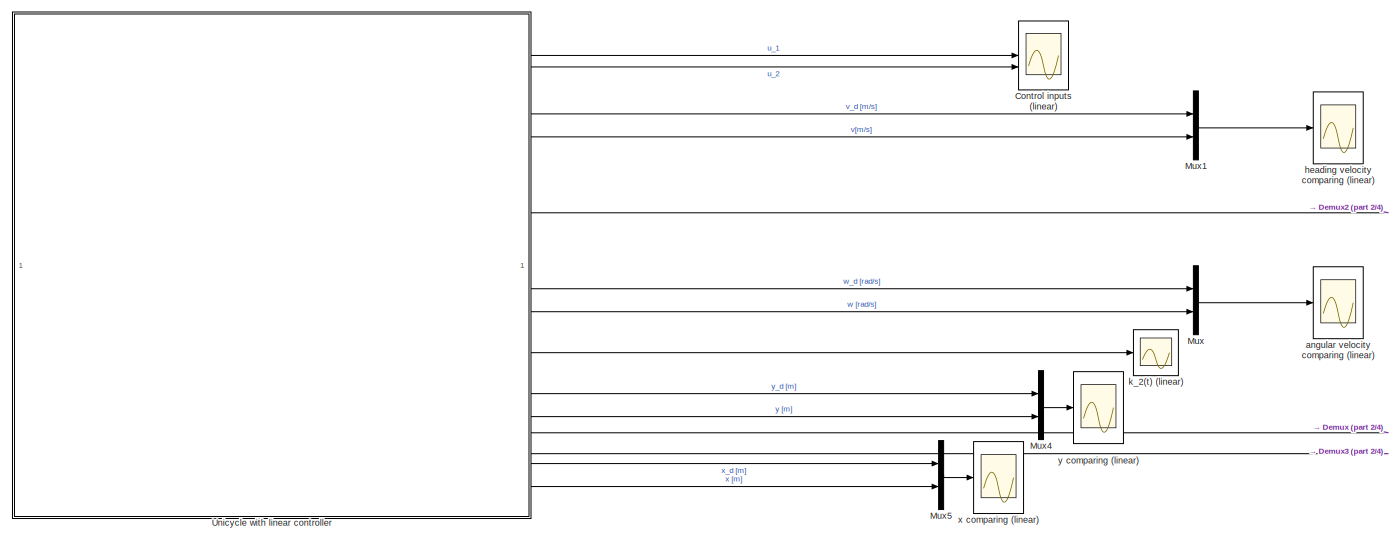
[diagram: root canvas - part 1/4, full width, top band]
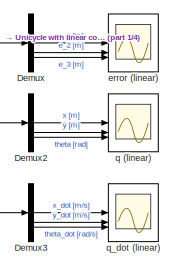
[diagram: root canvas - part 2/4, top right region]
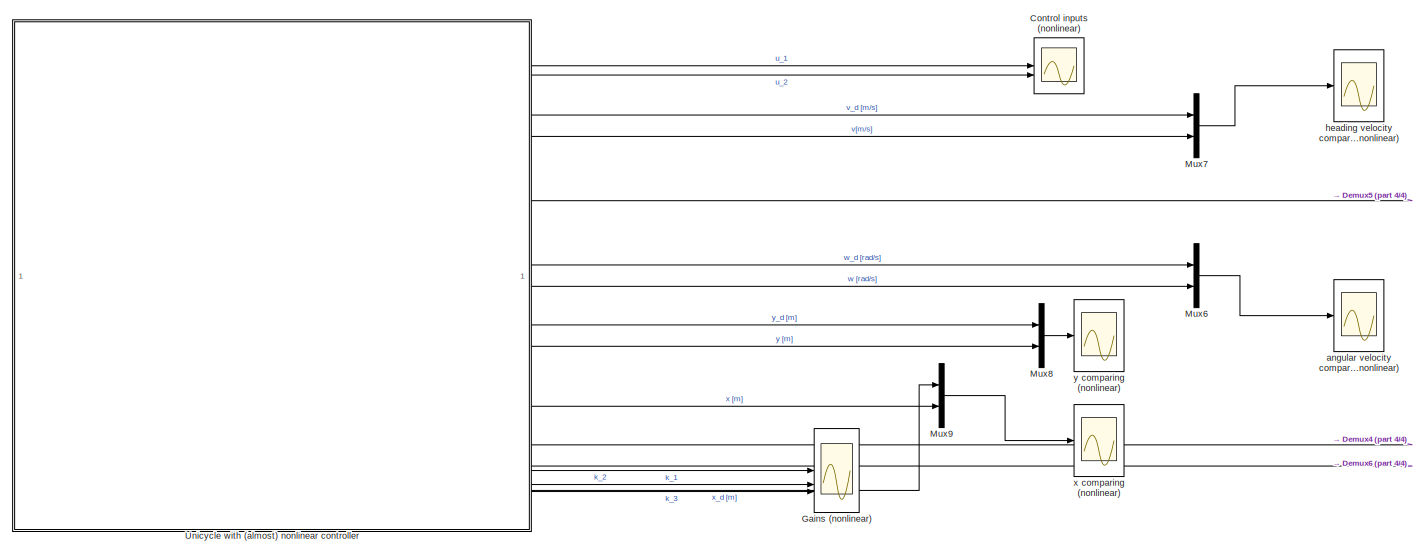
[diagram: root canvas - part 3/4, full width, bottom band]
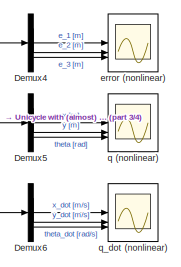
[diagram: root canvas - part 4/4, bottom right region]
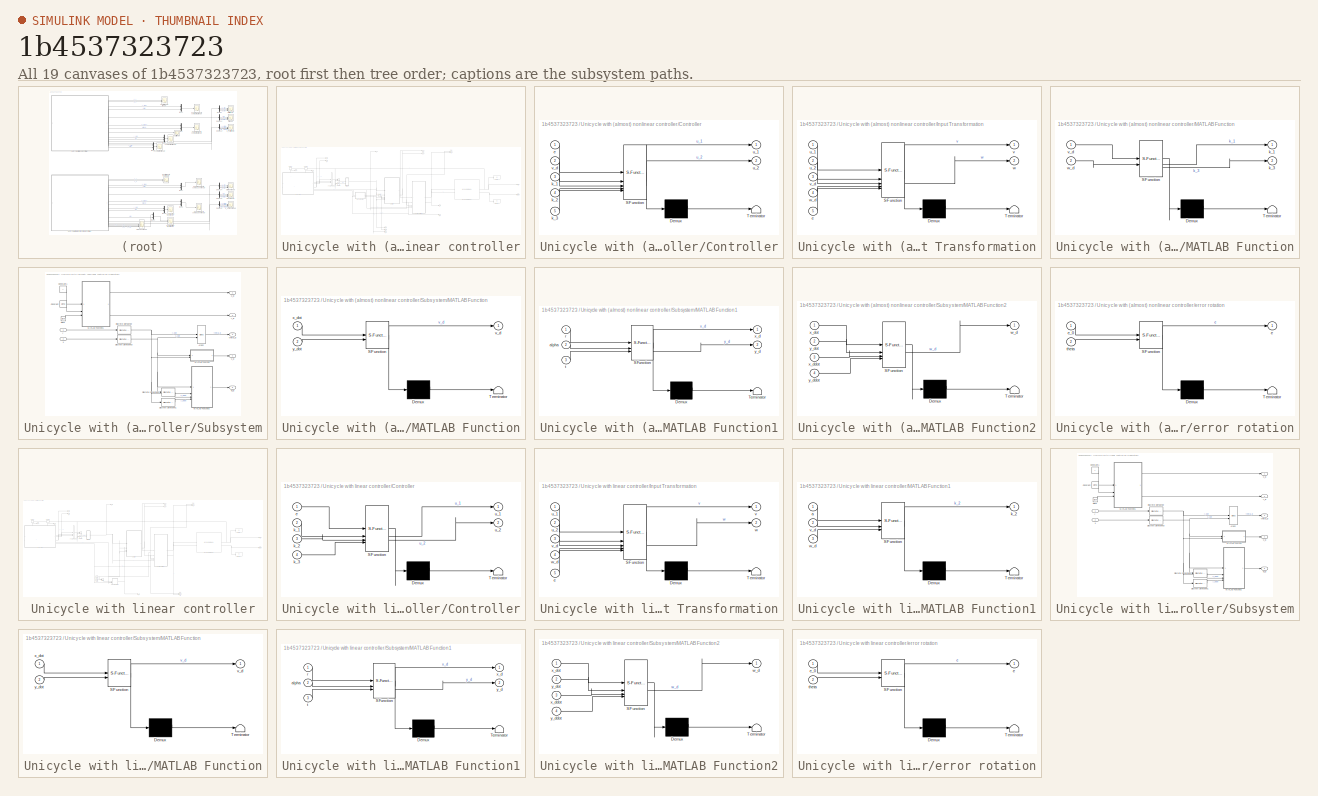
[diagram: thumbnail index - all 19 canvases of the model, root first then tree order]
MODEL slx_1b4537323723
KIND model
CONFIG AbsTol = auto
CONFIG EnableMultiTasking = off
CONFIG FixedStep = auto
CONFIG MaxStep = auto
CONFIG MinStep = auto
CONFIG RelTol = 1e-3
CONFIG SampleTimeConstraint = Unconstrained
CONFIG SolverName = VariableStepAuto
CONFIG StartTime = 0.0
CONFIG StopTime = 4*pi/(8+1)
BLOCK [Scope] Control inputs (linear)
  Floating = off
  NumInputPorts = 2
  ScopeSpecificationString = Simulink.scopes.TimeScopeBlockCfg('CurrentConfiguration', extmgr.ConfigurationSet(extmgr.Configuration('Core','General UI',true),extmgr.Configuration('Core','Source UI',true),extmgr.Configuration('Sources','WiredSimulink',true,'DataLoggingVariableName','ScopeData3'),extmgr.Configuration('Visuals','Time Domain',true,'SerializedDisplays',{struct('MinYLimReal','-5859.66855','MaxYLimReal','3794.41233'...<+1623ch>
BLOCK [Scope] Control inputs (nonlinear)
  Floating = off
  NumInputPorts = 2
  ScopeSpecificationString = Simulink.scopes.TimeScopeBlockCfg('CurrentConfiguration', extmgr.ConfigurationSet(extmgr.Configuration('Core','General UI',true),extmgr.Configuration('Core','Source UI',true),extmgr.Configuration('Sources','WiredSimulink',true,'DataLoggingVariableName','ScopeData3'),extmgr.Configuration('Visuals','Time Domain',true,'SerializedDisplays',{struct('MinYLimReal','-53585.46501','MaxYLimReal','171655.500...<+1635ch>
BLOCK [Demux] Demux
  Outputs = 3
BLOCK [Demux] Demux2
  Outputs = 3
BLOCK [Demux] Demux3
  Outputs = 3
BLOCK [Demux] Demux4
  Outputs = 3
BLOCK [Demux] Demux5
  Outputs = 3
BLOCK [Demux] Demux6
  Outputs = 3
BLOCK [Scope] Gains (nonlinear)
  Floating = off
  NumInputPorts = 3
  ScopeSpecificationString = Simulink.scopes.TimeScopeBlockCfg('CurrentConfiguration', extmgr.ConfigurationSet(extmgr.Configuration('Core','General UI',true),extmgr.Configuration('Core','Source UI',true),extmgr.Configuration('Sources','WiredSimulink',true,'DataLoggingVariableName','ScopeData1'),extmgr.Configuration('Visuals','Time Domain',true,'SerializedDisplays',{struct('MinYLimReal','-292.4499','MaxYLimReal','2642.18047','...<+2966ch>
BLOCK [Mux] Mux
  DisplayOption = bar
  Inputs = 2
BLOCK [Mux] Mux1
  DisplayOption = bar
  Inputs = 2
BLOCK [Mux] Mux4
  DisplayOption = bar
  Inputs = 2
BLOCK [Mux] Mux5
  DisplayOption = bar
  Inputs = 2
BLOCK [Mux] Mux6
  DisplayOption = bar
  Inputs = 2
BLOCK [Mux] Mux7
  DisplayOption = bar
  Inputs = 2
BLOCK [Mux] Mux8
  DisplayOption = bar
  Inputs = 2
BLOCK [Mux] Mux9
  DisplayOption = bar
  Inputs = 2
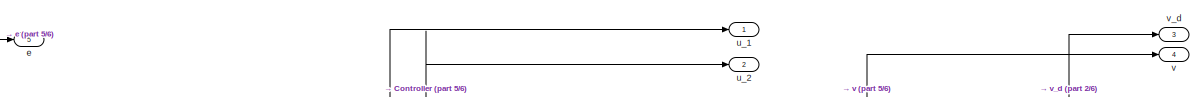
[diagram: Unicycle with (almost) nonlinear controller - part 1/6, top center region]
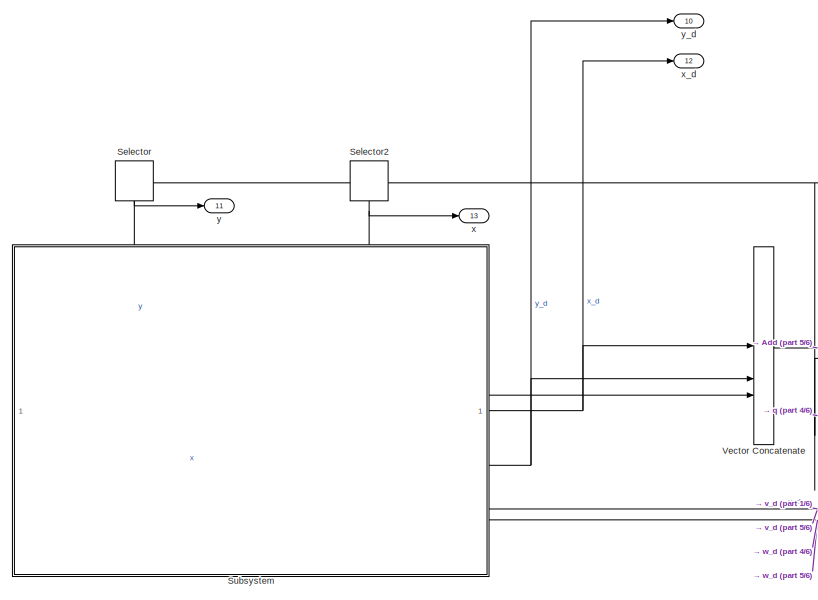
[diagram: Unicycle with (almost) nonlinear controller - part 2/6, top left region]
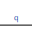
[diagram: Unicycle with (almost) nonlinear controller - part 3/6, top center region]
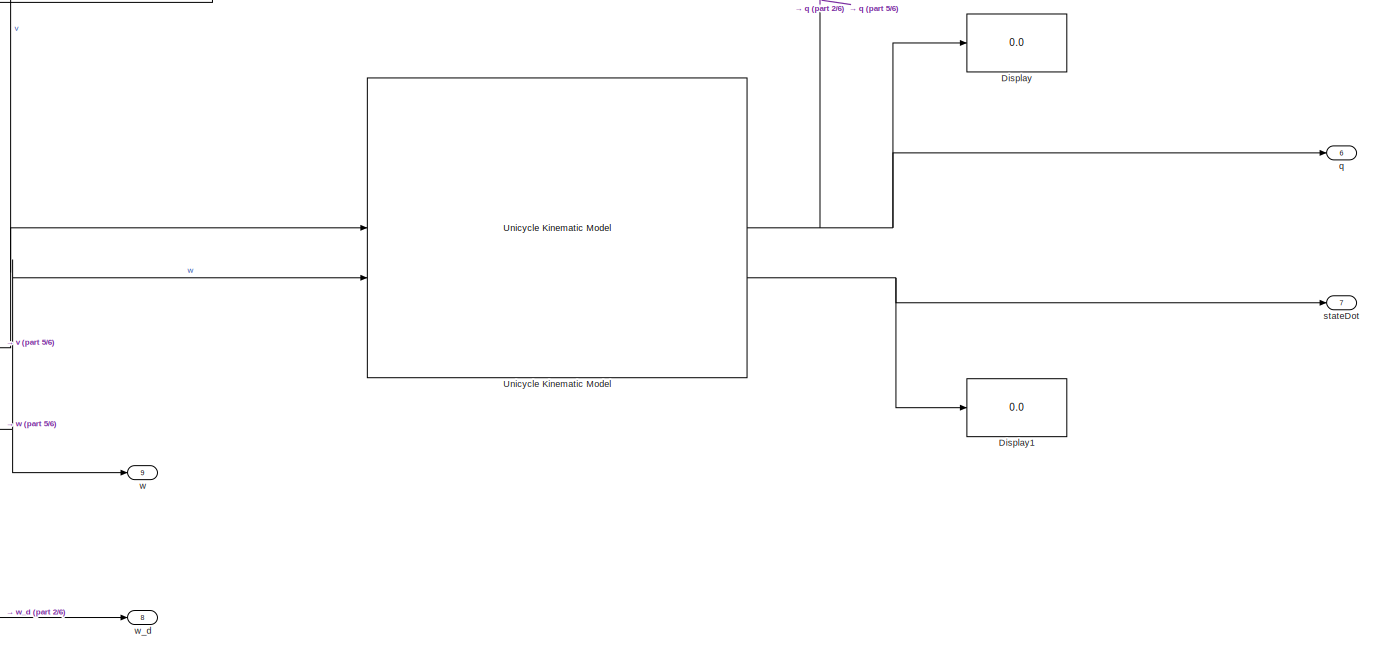
[diagram: Unicycle with (almost) nonlinear controller - part 4/6, middle right region]
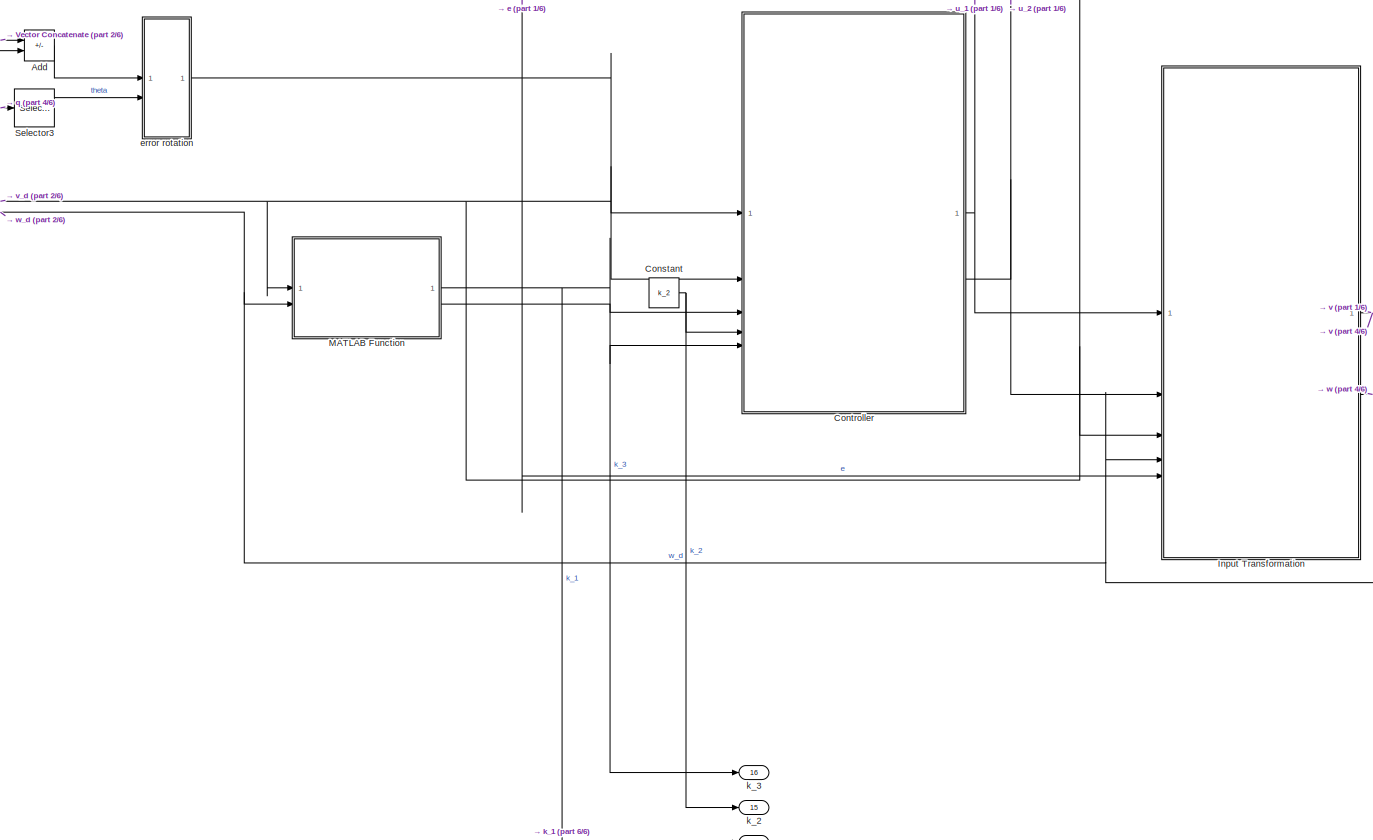
[diagram: Unicycle with (almost) nonlinear controller - part 5/6, central region]
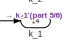
[diagram: Unicycle with (almost) nonlinear controller - part 6/6, bottom center region]
BLOCK [SubSystem] Unicycle with (almost) nonlinear controller
BLOCK [Sum] Unicycle with (almost) nonlinear controller/Add
  IconShape = rectangular
  Inputs = +-
BLOCK [Constant] Unicycle with (almost) nonlinear controller/Constant
  Value = k_2
BLOCK [SubSystem] Unicycle with (almost) nonlinear controller/Controller
  ErrorFcn = Stateflow.Translate.translate
  PermitHierarchicalResolution = ExplicitOnly
  SFBlockType = MATLAB Function
  TreatAsAtomicUnit = on
BLOCK [Demux] Unicycle with (almost) nonlinear controller/Controller/ Demux 
  Outputs = 1
BLOCK [S-Function] Unicycle with (almost) nonlinear controller/Controller/ SFunction 
  EnableBusSupport = on
  FunctionName = sf_sfun
  PortCounts = [5 3]
  SFcnIsStateOwnerBlock = off
  SFunctionDeploymentMode = off
  Tag = Stateflow S-Function 8
BLOCK [Terminator] Unicycle with (almost) nonlinear controller/Controller/ Terminator 
BLOCK [Inport] Unicycle with (almost) nonlinear controller/Controller/e
BLOCK [Inport] Unicycle with (almost) nonlinear controller/Controller/k_1
  Port = 3
BLOCK [Inport] Unicycle with (almost) nonlinear controller/Controller/k_2
  Port = 4
BLOCK [Inport] Unicycle with (almost) nonlinear controller/Controller/k_3
  Port = 5
BLOCK [Outport] Unicycle with (almost) nonlinear controller/Controller/u_1
BLOCK [Outport] Unicycle with (almost) nonlinear controller/Controller/u_2
  Port = 2
BLOCK [Inport] Unicycle with (almost) nonlinear controller/Controller/v_d
  Port = 2
BLOCK [Display] Unicycle with (almost) nonlinear controller/Display
  Decimation = 1
BLOCK [Display] Unicycle with (almost) nonlinear controller/Display1
  Decimation = 1
BLOCK [SubSystem] Unicycle with (almost) nonlinear controller/Input Transformation
  ErrorFcn = Stateflow.Translate.translate
  PermitHierarchicalResolution = ExplicitOnly
  SFBlockType = MATLAB Function
  TreatAsAtomicUnit = on
BLOCK [Demux] Unicycle with (almost) nonlinear controller/Input Transformation/ Demux 
  Outputs = 1
BLOCK [S-Function] Unicycle with (almost) nonlinear controller/Input Transformation/ SFunction 
  EnableBusSupport = on
  FunctionName = sf_sfun
  PortCounts = [5 3]
  SFcnIsStateOwnerBlock = off
  SFunctionDeploymentMode = off
  Tag = Stateflow S-Function 9
BLOCK [Terminator] Unicycle with (almost) nonlinear controller/Input Transformation/ Terminator 
BLOCK [Inport] Unicycle with (almost) nonlinear controller/Input Transformation/e
  Port = 5
BLOCK [Inport] Unicycle with (almost) nonlinear controller/Input Transformation/u_1
BLOCK [Inport] Unicycle with (almost) nonlinear controller/Input Transformation/u_2
  Port = 2
BLOCK [Outport] Unicycle with (almost) nonlinear controller/Input Transformation/v
BLOCK [Inport] Unicycle with (almost) nonlinear controller/Input Transformation/v_d
  Port = 3
BLOCK [Outport] Unicycle with (almost) nonlinear controller/Input Transformation/w
  Port = 2
BLOCK [Inport] Unicycle with (almost) nonlinear controller/Input Transformation/w_d
  Port = 4
BLOCK [SubSystem] Unicycle with (almost) nonlinear controller/MATLAB Function
  ErrorFcn = Stateflow.Translate.translate
  PermitHierarchicalResolution = ExplicitOnly
  SFBlockType = MATLAB Function
  TreatAsAtomicUnit = on
BLOCK [Demux] Unicycle with (almost) nonlinear controller/MATLAB Function/ Demux 
  Outputs = 1
BLOCK [S-Function] Unicycle with (almost) nonlinear controller/MATLAB Function/ SFunction 
  EnableBusSupport = on
  FunctionName = sf_sfun
  PortCounts = [2 3]
  SFcnIsStateOwnerBlock = off
  SFunctionDeploymentMode = off
  Tag = Stateflow S-Function 10
BLOCK [Terminator] Unicycle with (almost) nonlinear controller/MATLAB Function/ Terminator 
BLOCK [Outport] Unicycle with (almost) nonlinear controller/MATLAB Function/k_1
BLOCK [Outport] Unicycle with (almost) nonlinear controller/MATLAB Function/k_3
  Port = 2
BLOCK [Inport] Unicycle with (almost) nonlinear controller/MATLAB Function/v_d
BLOCK [Inport] Unicycle with (almost) nonlinear controller/MATLAB Function/w_d
  Port = 2
BLOCK [Selector] Unicycle with (almost) nonlinear controller/Selector
  IndexOptions = Index vector (dialog)
  Indices = 2
  InputPortWidth = 3
  NameLocation = left
  OutputSizes = 1
  RuntimeRangeChecks = on
BLOCK [Selector] Unicycle with (almost) nonlinear controller/Selector2
  IndexOptions = Index vector (dialog)
  Indices = [1]
  InputPortWidth = 3
  NameLocation = left
  OutputSizes = 1
  RuntimeRangeChecks = on
BLOCK [Selector] Unicycle with (almost) nonlinear controller/Selector3
  IndexOptions = Index vector (dialog)
  Indices = 3
  InputPortWidth = 3
  OutputSizes = 1
BLOCK [SubSystem] Unicycle with (almost) nonlinear controller/Subsystem
  PortSchema = {"entries":[{"content":{"sides":[{"content":{},"type":"ConnectorPlacement.EquallySpacedRectSide","uuid":"5e1ef72e-e14b-4fc5-86a2-e7b300b76291"},{"content":{"connectorIds":["Out1","Out2","Out3","Out4","Out5"],"side":"RIGHT"},"type":"ConnectorPlacement.EquallySpacedRectSide","uuid":"f3f998ca-b69f-453a-813f-7c460b5f2423"},{"content":{"connectorIds":["In1","In2"],"side":"TOP"},"type":"ConnectorPlaceme...<+257ch>
BLOCK [Trigonometry] Unicycle with (almost) nonlinear controller/Subsystem/Atan2
  Operator = atan2
BLOCK [Clock] Unicycle with (almost) nonlinear controller/Subsystem/Clock
BLOCK [Constant] Unicycle with (almost) nonlinear controller/Subsystem/Constant
  Value = alpha
BLOCK [Constant] Unicycle with (almost) nonlinear controller/Subsystem/Constant1
  Value = r
BLOCK [Reference] Unicycle with (almost) nonlinear controller/Subsystem/Discrete Derivative  REF=simulink/Quick Insert/Discrete/Discrete Derivative
  SourceBlock = simulink/Quick Insert/Discrete/Discrete Derivative
  SourceType = Discrete Derivative
BLOCK [Reference] Unicycle with (almost) nonlinear controller/Subsystem/Discrete Derivative1  REF=simulink/Quick Insert/Discrete/Discrete Derivative
  SourceBlock = simulink/Quick Insert/Discrete/Discrete Derivative
  SourceType = Discrete Derivative
BLOCK [Reference] Unicycle with (almost) nonlinear controller/Subsystem/Discrete Derivative2  REF=simulink/Quick Insert/Discrete/Discrete Derivative
  SourceBlock = simulink/Quick Insert/Discrete/Discrete Derivative
  SourceType = Discrete Derivative
BLOCK [Reference] Unicycle with (almost) nonlinear controller/Subsystem/Discrete Derivative3  REF=simulink/Quick Insert/Discrete/Discrete Derivative
  SourceBlock = simulink/Quick Insert/Discrete/Discrete Derivative
  SourceType = Discrete Derivative
BLOCK [SubSystem] Unicycle with (almost) nonlinear controller/Subsystem/MATLAB Function
  ErrorFcn = Stateflow.Translate.translate
  PermitHierarchicalResolution = ExplicitOnly
  SFBlockType = MATLAB Function
  TreatAsAtomicUnit = on
BLOCK [Demux] Unicycle with (almost) nonlinear controller/Subsystem/MATLAB Function/ Demux 
  Outputs = 1
BLOCK [S-Function] Unicycle with (almost) nonlinear controller/Subsystem/MATLAB Function/ SFunction 
  EnableBusSupport = on
  FunctionName = sf_sfun
  PortCounts = [2 2]
  SFcnIsStateOwnerBlock = off
  SFunctionDeploymentMode = off
  Tag = Stateflow S-Function 11
BLOCK [Terminator] Unicycle with (almost) nonlinear controller/Subsystem/MATLAB Function/ Terminator 
BLOCK [Outport] Unicycle with (almost) nonlinear controller/Subsystem/MATLAB Function/v_d
BLOCK [Inport] Unicycle with (almost) nonlinear controller/Subsystem/MATLAB Function/x_dot
BLOCK [Inport] Unicycle with (almost) nonlinear controller/Subsystem/MATLAB Function/y_dot
  Port = 2
BLOCK [SubSystem] Unicycle with (almost) nonlinear controller/Subsystem/MATLAB Function1
  ErrorFcn = Stateflow.Translate.translate
  PermitHierarchicalResolution = ExplicitOnly
  SFBlockType = MATLAB Function
  TreatAsAtomicUnit = on
BLOCK [Demux] Unicycle with (almost) nonlinear controller/Subsystem/MATLAB Function1/ Demux 
  Outputs = 1
BLOCK [S-Function] Unicycle with (almost) nonlinear controller/Subsystem/MATLAB Function1/ SFunction 
  EnableBusSupport = on
  FunctionName = sf_sfun
  PortCounts = [3 3]
  SFcnIsStateOwnerBlock = off
  SFunctionDeploymentMode = off
  Tag = Stateflow S-Function 12
BLOCK [Terminator] Unicycle with (almost) nonlinear controller/Subsystem/MATLAB Function1/ Terminator 
BLOCK [Inport] Unicycle with (almost) nonlinear controller/Subsystem/MATLAB Function1/alpha
  Port = 2
BLOCK [Inport] Unicycle with (almost) nonlinear controller/Subsystem/MATLAB Function1/r
BLOCK [Inport] Unicycle with (almost) nonlinear controller/Subsystem/MATLAB Function1/t
  Port = 3
BLOCK [Outport] Unicycle with (almost) nonlinear controller/Subsystem/MATLAB Function1/x_d
BLOCK [Outport] Unicycle with (almost) nonlinear controller/Subsystem/MATLAB Function1/y_d
  Port = 2
BLOCK [SubSystem] Unicycle with (almost) nonlinear controller/Subsystem/MATLAB Function2
  ErrorFcn = Stateflow.Translate.translate
  PermitHierarchicalResolution = ExplicitOnly
  SFBlockType = MATLAB Function
  TreatAsAtomicUnit = on
BLOCK [Demux] Unicycle with (almost) nonlinear controller/Subsystem/MATLAB Function2/ Demux 
  Outputs = 1
BLOCK [S-Function] Unicycle with (almost) nonlinear controller/Subsystem/MATLAB Function2/ SFunction 
  EnableBusSupport = on
  FunctionName = sf_sfun
  PortCounts = [4 2]
  SFcnIsStateOwnerBlock = off
  SFunctionDeploymentMode = off
  Tag = Stateflow S-Function 13
BLOCK [Terminator] Unicycle with (almost) nonlinear controller/Subsystem/MATLAB Function2/ Terminator 
BLOCK [Outport] Unicycle with (almost) nonlinear controller/Subsystem/MATLAB Function2/w_d
BLOCK [Inport] Unicycle with (almost) nonlinear controller/Subsystem/MATLAB Function2/x_ddot
  Port = 3
BLOCK [Inport] Unicycle with (almost) nonlinear controller/Subsystem/MATLAB Function2/x_dot
BLOCK [Inport] Unicycle with (almost) nonlinear controller/Subsystem/MATLAB Function2/y_ddot
  Port = 4
BLOCK [Inport] Unicycle with (almost) nonlinear controller/Subsystem/MATLAB Function2/y_dot
  Port = 2
BLOCK [Outport] Unicycle with (almost) nonlinear controller/Subsystem/theta_d
  Port = 3
BLOCK [Outport] Unicycle with (almost) nonlinear controller/Subsystem/v_d
  Port = 4
BLOCK [Outport] Unicycle with (almost) nonlinear controller/Subsystem/w_d
  Port = 5
BLOCK [Inport] Unicycle with (almost) nonlinear controller/Subsystem/x
  Port = 2
BLOCK [Outport] Unicycle with (almost) nonlinear controller/Subsystem/x_d
BLOCK [Inport] Unicycle with (almost) nonlinear controller/Subsystem/y
BLOCK [Outport] Unicycle with (almost) nonlinear controller/Subsystem/y_d
  Port = 2
BLOCK [Reference] Unicycle with (almost) nonlinear controller/Unicycle Kinematic Model  REF=robotmobilelib/Unicycle Kinematic Model
  SourceBlock = robotmobilelib/Unicycle Kinematic Model
  SourceType = Unicycle Kinematic Model
BLOCK [Concatenate] Unicycle with (almost) nonlinear controller/Vector Concatenate
  NumInputs = 3
BLOCK [Outport] Unicycle with (almost) nonlinear controller/e
  Port = 5
BLOCK [SubSystem] Unicycle with (almost) nonlinear controller/error rotation
  ErrorFcn = Stateflow.Translate.translate
  PermitHierarchicalResolution = ExplicitOnly
  SFBlockType = MATLAB Function
  TreatAsAtomicUnit = on
BLOCK [Demux] Unicycle with (almost) nonlinear controller/error rotation/ Demux 
  Outputs = 1
BLOCK [S-Function] Unicycle with (almost) nonlinear controller/error rotation/ SFunction 
  EnableBusSupport = on
  FunctionName = sf_sfun
  PortCounts = [2 2]
  SFcnIsStateOwnerBlock = off
  SFunctionDeploymentMode = off
  Tag = Stateflow S-Function 14
BLOCK [Terminator] Unicycle with (almost) nonlinear controller/error rotation/ Terminator 
BLOCK [Outport] Unicycle with (almost) nonlinear controller/error rotation/e
BLOCK [Inport] Unicycle with (almost) nonlinear controller/error rotation/e_0
BLOCK [Inport] Unicycle with (almost) nonlinear controller/error rotation/theta
  Port = 2
BLOCK [Outport] Unicycle with (almost) nonlinear controller/k_1
  Port = 14
BLOCK [Outport] Unicycle with (almost) nonlinear controller/k_2
  Port = 15
BLOCK [Outport] Unicycle with (almost) nonlinear controller/k_3
  Port = 16
BLOCK [Outport] Unicycle with (almost) nonlinear controller/q
  Port = 6
BLOCK [Outport] Unicycle with (almost) nonlinear controller/stateDot
  Port = 7
BLOCK [Outport] Unicycle with (almost) nonlinear controller/u_1
BLOCK [Outport] Unicycle with (almost) nonlinear controller/u_2
  Port = 2
BLOCK [Outport] Unicycle with (almost) nonlinear controller/v
  Port = 4
BLOCK [Outport] Unicycle with (almost) nonlinear controller/v_d
  Port = 3
BLOCK [Outport] Unicycle with (almost) nonlinear controller/w
  Port = 9
BLOCK [Outport] Unicycle with (almost) nonlinear controller/w_d
  Port = 8
BLOCK [Outport] Unicycle with (almost) nonlinear controller/x
  Port = 13
BLOCK [Outport] Unicycle with (almost) nonlinear controller/x_d
  Port = 12
BLOCK [Outport] Unicycle with (almost) nonlinear controller/y
  Port = 11
BLOCK [Outport] Unicycle with (almost) nonlinear controller/y_d
  Port = 10
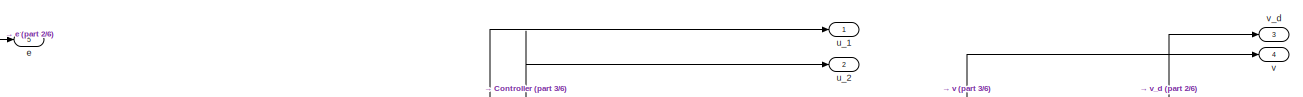
[diagram: Unicycle with linear controller - part 1/6, top center region]
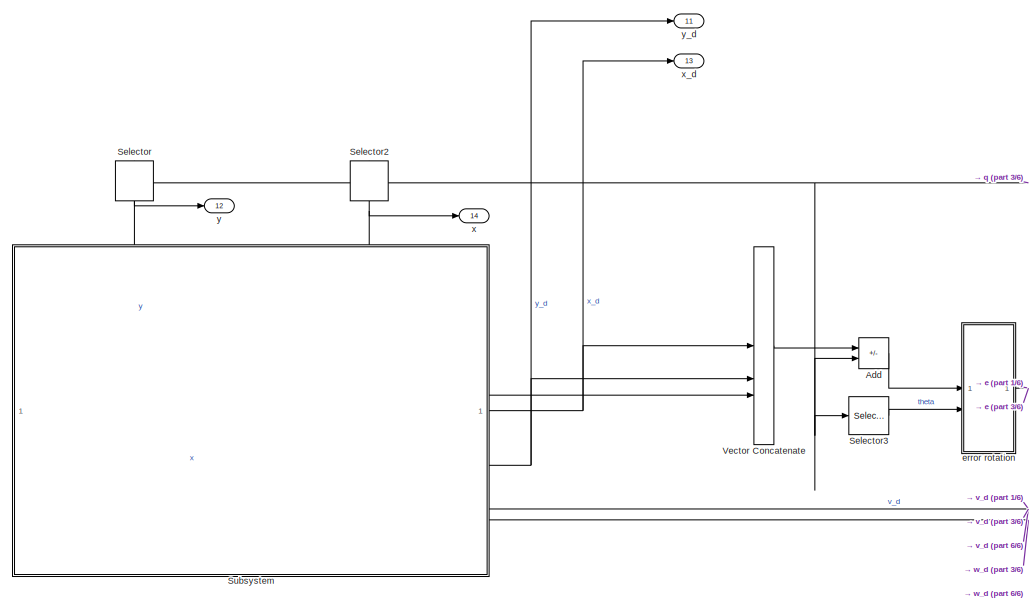
[diagram: Unicycle with linear controller - part 2/6, top left region]
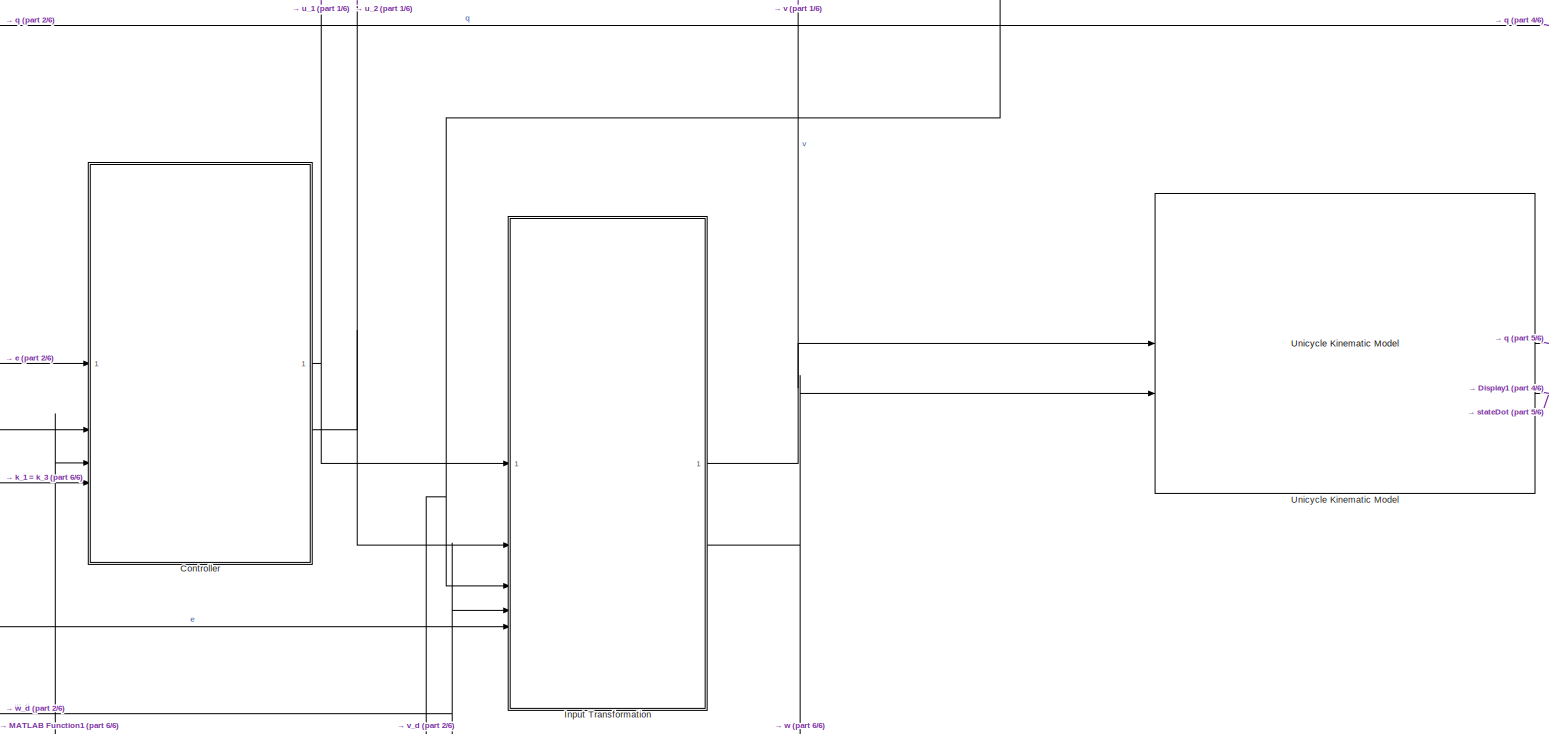
[diagram: Unicycle with linear controller - part 3/6, central region]
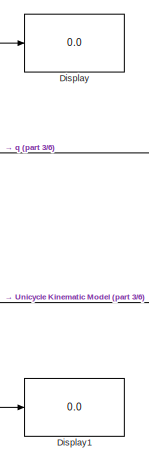
[diagram: Unicycle with linear controller - part 4/6, middle right region]
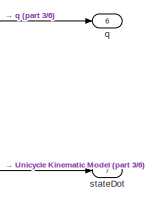
[diagram: Unicycle with linear controller - part 5/6, middle right region]
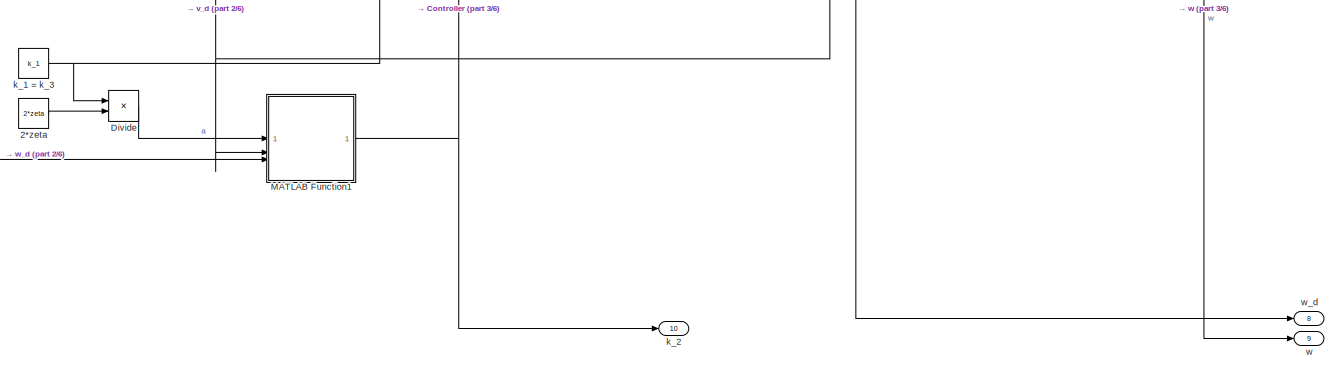
[diagram: Unicycle with linear controller - part 6/6, bottom center region]
BLOCK [SubSystem] Unicycle with linear controller
BLOCK [Constant] Unicycle with linear controller/2*zeta
  Value = 2*zeta
BLOCK [Sum] Unicycle with linear controller/Add
  IconShape = rectangular
  Inputs = +-
BLOCK [SubSystem] Unicycle with linear controller/Controller
  ErrorFcn = Stateflow.Translate.translate
  PermitHierarchicalResolution = ExplicitOnly
  SFBlockType = MATLAB Function
  TreatAsAtomicUnit = on
BLOCK [Demux] Unicycle with linear controller/Controller/ Demux 
  Outputs = 1
BLOCK [S-Function] Unicycle with linear controller/Controller/ SFunction 
  EnableBusSupport = on
  FunctionName = sf_sfun
  PortCounts = [4 3]
  SFcnIsStateOwnerBlock = off
  SFunctionDeploymentMode = off
  Tag = Stateflow S-Function 2
BLOCK [Terminator] Unicycle with linear controller/Controller/ Terminator 
BLOCK [Inport] Unicycle with linear controller/Controller/e
BLOCK [Inport] Unicycle with linear controller/Controller/k_1
  Port = 2
BLOCK [Inport] Unicycle with linear controller/Controller/k_2
  Port = 3
BLOCK [Inport] Unicycle with linear controller/Controller/k_3
  Port = 4
BLOCK [Outport] Unicycle with linear controller/Controller/u_1
BLOCK [Outport] Unicycle with linear controller/Controller/u_2
  Port = 2
BLOCK [Display] Unicycle with linear controller/Display
  Decimation = 1
BLOCK [Display] Unicycle with linear controller/Display1
  Decimation = 1
BLOCK [Product] Unicycle with linear controller/Divide
  Inputs = */
BLOCK [SubSystem] Unicycle with linear controller/Input Transformation
  ErrorFcn = Stateflow.Translate.translate
  PermitHierarchicalResolution = ExplicitOnly
  SFBlockType = MATLAB Function
  TreatAsAtomicUnit = on
BLOCK [Demux] Unicycle with linear controller/Input Transformation/ Demux 
  Outputs = 1
BLOCK [S-Function] Unicycle with linear controller/Input Transformation/ SFunction 
  EnableBusSupport = on
  FunctionName = sf_sfun
  PortCounts = [5 3]
  SFcnIsStateOwnerBlock = off
  SFunctionDeploymentMode = off
  Tag = Stateflow S-Function 6
BLOCK [Terminator] Unicycle with linear controller/Input Transformation/ Terminator 
BLOCK [Inport] Unicycle with linear controller/Input Transformation/e
  Port = 5
BLOCK [Inport] Unicycle with linear controller/Input Transformation/u_1
BLOCK [Inport] Unicycle with linear controller/Input Transformation/u_2
  Port = 2
BLOCK [Outport] Unicycle with linear controller/Input Transformation/v
BLOCK [Inport] Unicycle with linear controller/Input Transformation/v_d
  Port = 3
BLOCK [Outport] Unicycle with linear controller/Input Transformation/w
  Port = 2
BLOCK [Inport] Unicycle with linear controller/Input Transformation/w_d
  Port = 4
BLOCK [SubSystem] Unicycle with linear controller/MATLAB Function1
  ErrorFcn = Stateflow.Translate.translate
  PermitHierarchicalResolution = ExplicitOnly
  SFBlockType = MATLAB Function
  TreatAsAtomicUnit = on
BLOCK [Demux] Unicycle with linear controller/MATLAB Function1/ Demux 
  Outputs = 1
BLOCK [S-Function] Unicycle with linear controller/MATLAB Function1/ SFunction 
  EnableBusSupport = on
  FunctionName = sf_sfun
  PortCounts = [3 2]
  SFcnIsStateOwnerBlock = off
  SFunctionDeploymentMode = off
  Tag = Stateflow S-Function 5
BLOCK [Terminator] Unicycle with linear controller/MATLAB Function1/ Terminator 
BLOCK [Inport] Unicycle with linear controller/MATLAB Function1/a
BLOCK [Outport] Unicycle with linear controller/MATLAB Function1/k_2
BLOCK [Inport] Unicycle with linear controller/MATLAB Function1/v_d
  Port = 2
BLOCK [Inport] Unicycle with linear controller/MATLAB Function1/w_d
  Port = 3
BLOCK [Selector] Unicycle with linear controller/Selector
  IndexOptions = Index vector (dialog)
  Indices = 2
  InputPortWidth = 3
  NameLocation = left
  OutputSizes = 1
  RuntimeRangeChecks = on
BLOCK [Selector] Unicycle with linear controller/Selector2
  IndexOptions = Index vector (dialog)
  Indices = [1]
  InputPortWidth = 3
  NameLocation = left
  OutputSizes = 1
  RuntimeRangeChecks = on
BLOCK [Selector] Unicycle with linear controller/Selector3
  IndexOptions = Index vector (dialog)
  Indices = 3
  InputPortWidth = 3
  OutputSizes = 1
BLOCK [SubSystem] Unicycle with linear controller/Subsystem
  PortSchema = {"entries":[{"content":{"sides":[{"content":{},"type":"ConnectorPlacement.EquallySpacedRectSide","uuid":"5e1ef72e-e14b-4fc5-86a2-e7b300b76291"},{"content":{"connectorIds":["Out1","Out2","Out3","Out4","Out5"],"side":"RIGHT"},"type":"ConnectorPlacement.EquallySpacedRectSide","uuid":"f3f998ca-b69f-453a-813f-7c460b5f2423"},{"content":{"connectorIds":["In1","In2"],"side":"TOP"},"type":"ConnectorPlaceme...<+257ch>
BLOCK [Trigonometry] Unicycle with linear controller/Subsystem/Atan2
  Operator = atan2
BLOCK [Clock] Unicycle with linear controller/Subsystem/Clock
BLOCK [Constant] Unicycle with linear controller/Subsystem/Constant
  Value = alpha
BLOCK [Constant] Unicycle with linear controller/Subsystem/Constant1
  Value = r
BLOCK [Reference] Unicycle with linear controller/Subsystem/Discrete Derivative  REF=simulink/Quick Insert/Discrete/Discrete Derivative
  SourceBlock = simulink/Quick Insert/Discrete/Discrete Derivative
  SourceType = Discrete Derivative
BLOCK [Reference] Unicycle with linear controller/Subsystem/Discrete Derivative1  REF=simulink/Quick Insert/Discrete/Discrete Derivative
  SourceBlock = simulink/Quick Insert/Discrete/Discrete Derivative
  SourceType = Discrete Derivative
BLOCK [Reference] Unicycle with linear controller/Subsystem/Discrete Derivative2  REF=simulink/Quick Insert/Discrete/Discrete Derivative
  SourceBlock = simulink/Quick Insert/Discrete/Discrete Derivative
  SourceType = Discrete Derivative
BLOCK [Reference] Unicycle with linear controller/Subsystem/Discrete Derivative3  REF=simulink/Quick Insert/Discrete/Discrete Derivative
  SourceBlock = simulink/Quick Insert/Discrete/Discrete Derivative
  SourceType = Discrete Derivative
BLOCK [SubSystem] Unicycle with linear controller/Subsystem/MATLAB Function
  ErrorFcn = Stateflow.Translate.translate
  PermitHierarchicalResolution = ExplicitOnly
  SFBlockType = MATLAB Function
  TreatAsAtomicUnit = on
BLOCK [Demux] Unicycle with linear controller/Subsystem/MATLAB Function/ Demux 
  Outputs = 1
BLOCK [S-Function] Unicycle with linear controller/Subsystem/MATLAB Function/ SFunction 
  EnableBusSupport = on
  FunctionName = sf_sfun
  PortCounts = [2 2]
  SFcnIsStateOwnerBlock = off
  SFunctionDeploymentMode = off
  Tag = Stateflow S-Function 3
BLOCK [Terminator] Unicycle with linear controller/Subsystem/MATLAB Function/ Terminator 
BLOCK [Outport] Unicycle with linear controller/Subsystem/MATLAB Function/v_d
BLOCK [Inport] Unicycle with linear controller/Subsystem/MATLAB Function/x_dot
BLOCK [Inport] Unicycle with linear controller/Subsystem/MATLAB Function/y_dot
  Port = 2
BLOCK [SubSystem] Unicycle with linear controller/Subsystem/MATLAB Function1
  ErrorFcn = Stateflow.Translate.translate
  PermitHierarchicalResolution = ExplicitOnly
  SFBlockType = MATLAB Function
  TreatAsAtomicUnit = on
BLOCK [Demux] Unicycle with linear controller/Subsystem/MATLAB Function1/ Demux 
  Outputs = 1
BLOCK [S-Function] Unicycle with linear controller/Subsystem/MATLAB Function1/ SFunction 
  EnableBusSupport = on
  FunctionName = sf_sfun
  PortCounts = [3 3]
  SFcnIsStateOwnerBlock = off
  SFunctionDeploymentMode = off
  Tag = Stateflow S-Function 1
BLOCK [Terminator] Unicycle with linear controller/Subsystem/MATLAB Function1/ Terminator 
BLOCK [Inport] Unicycle with linear controller/Subsystem/MATLAB Function1/alpha
  Port = 2
BLOCK [Inport] Unicycle with linear controller/Subsystem/MATLAB Function1/r
BLOCK [Inport] Unicycle with linear controller/Subsystem/MATLAB Function1/t
  Port = 3
BLOCK [Outport] Unicycle with linear controller/Subsystem/MATLAB Function1/x_d
BLOCK [Outport] Unicycle with linear controller/Subsystem/MATLAB Function1/y_d
  Port = 2
BLOCK [SubSystem] Unicycle with linear controller/Subsystem/MATLAB Function2
  ErrorFcn = Stateflow.Translate.translate
  PermitHierarchicalResolution = ExplicitOnly
  SFBlockType = MATLAB Function
  TreatAsAtomicUnit = on
BLOCK [Demux] Unicycle with linear controller/Subsystem/MATLAB Function2/ Demux 
  Outputs = 1
BLOCK [S-Function] Unicycle with linear controller/Subsystem/MATLAB Function2/ SFunction 
  EnableBusSupport = on
  FunctionName = sf_sfun
  PortCounts = [4 2]
  SFcnIsStateOwnerBlock = off
  SFunctionDeploymentMode = off
  Tag = Stateflow S-Function 4
BLOCK [Terminator] Unicycle with linear controller/Subsystem/MATLAB Function2/ Terminator 
BLOCK [Outport] Unicycle with linear controller/Subsystem/MATLAB Function2/w_d
BLOCK [Inport] Unicycle with linear controller/Subsystem/MATLAB Function2/x_ddot
  Port = 3
BLOCK [Inport] Unicycle with linear controller/Subsystem/MATLAB Function2/x_dot
BLOCK [Inport] Unicycle with linear controller/Subsystem/MATLAB Function2/y_ddot
  Port = 4
BLOCK [Inport] Unicycle with linear controller/Subsystem/MATLAB Function2/y_dot
  Port = 2
BLOCK [Outport] Unicycle with linear controller/Subsystem/theta_d
  Port = 3
BLOCK [Outport] Unicycle with linear controller/Subsystem/v_d
  Port = 4
BLOCK [Outport] Unicycle with linear controller/Subsystem/w_d
  Port = 5
BLOCK [Inport] Unicycle with linear controller/Subsystem/x
  Port = 2
BLOCK [Outport] Unicycle with linear controller/Subsystem/x_d
BLOCK [Inport] Unicycle with linear controller/Subsystem/y
BLOCK [Outport] Unicycle with linear controller/Subsystem/y_d
  Port = 2
BLOCK [Reference] Unicycle with linear controller/Unicycle Kinematic Model  REF=robotmobilelib/Unicycle Kinematic Model
  SourceBlock = robotmobilelib/Unicycle Kinematic Model
  SourceType = Unicycle Kinematic Model
BLOCK [Concatenate] Unicycle with linear controller/Vector Concatenate
  NumInputs = 3
BLOCK [Outport] Unicycle with linear controller/e
  Port = 5
BLOCK [SubSystem] Unicycle with linear controller/error rotation
  ErrorFcn = Stateflow.Translate.translate
  PermitHierarchicalResolution = ExplicitOnly
  SFBlockType = MATLAB Function
  TreatAsAtomicUnit = on
BLOCK [Demux] Unicycle with linear controller/error rotation/ Demux 
  Outputs = 1
BLOCK [S-Function] Unicycle with linear controller/error rotation/ SFunction 
  EnableBusSupport = on
  FunctionName = sf_sfun
  PortCounts = [2 2]
  SFcnIsStateOwnerBlock = off
  SFunctionDeploymentMode = off
  Tag = Stateflow S-Function 7
BLOCK [Terminator] Unicycle with linear controller/error rotation/ Terminator 
BLOCK [Outport] Unicycle with linear controller/error rotation/e
BLOCK [Inport] Unicycle with linear controller/error rotation/e_0
BLOCK [Inport] Unicycle with linear controller/error rotation/theta
  Port = 2
BLOCK [Constant] Unicycle with linear controller/k_1 = k_3
  Value = k_1
BLOCK [Outport] Unicycle with linear controller/k_2
  Port = 10
BLOCK [Outport] Unicycle with linear controller/q
  Port = 6
BLOCK [Outport] Unicycle with linear controller/stateDot
  Port = 7
BLOCK [Outport] Unicycle with linear controller/u_1
BLOCK [Outport] Unicycle with linear controller/u_2
  Port = 2
BLOCK [Outport] Unicycle with linear controller/v
  Port = 4
BLOCK [Outport] Unicycle with linear controller/v_d
  Port = 3
BLOCK [Outport] Unicycle with linear controller/w
  Port = 9
BLOCK [Outport] Unicycle with linear controller/w_d
  Port = 8
BLOCK [Outport] Unicycle with linear controller/x
  Port = 14
BLOCK [Outport] Unicycle with linear controller/x_d
  Port = 13
BLOCK [Outport] Unicycle with linear controller/y
  Port = 12
BLOCK [Outport] Unicycle with linear controller/y_d
  Port = 11
BLOCK [Scope] angular velocity comparing (linear)
  Floating = off
  NumInputPorts = 1
  ScopeSpecificationString = Simulink.scopes.TimeScopeBlockCfg('CurrentConfiguration', extmgr.ConfigurationSet(extmgr.Configuration('Core','General UI',true,'FigureColor',[1 1 1]),extmgr.Configuration('Core','Source UI',true),extmgr.Configuration('Sources','WiredSimulink',true,'DataLoggingVariableName','ScopeData8'),extmgr.Configuration('Visuals','Time Domain',true,'TimeAxisLabels','All','SerializedDisplays',{struct('MinYLimR...<+1900ch>
BLOCK [Scope] angular velocity comparing (nonlinear)
  Floating = off
  NumInputPorts = 1
  ScopeSpecificationString = Simulink.scopes.TimeScopeBlockCfg('CurrentConfiguration', extmgr.ConfigurationSet(extmgr.Configuration('Core','General UI',true,'FigureColor',[1 1 1]),extmgr.Configuration('Core','Source UI',true),extmgr.Configuration('Sources','WiredSimulink',true,'DataLoggingVariableName','ScopeData12'),extmgr.Configuration('Visuals','Time Domain',true,'TimeAxisLabels','All','SerializedDisplays',{struct('MinYLim...<+1901ch>
BLOCK [Scope] error (linear)
  Floating = off
  NumInputPorts = 3
  ScopeSpecificationString = Simulink.scopes.TimeScopeBlockCfg('CurrentConfiguration', extmgr.ConfigurationSet(extmgr.Configuration('Core','General UI',true,'FigureColor',[1 1 1]),extmgr.Configuration('Core','Source UI',true),extmgr.Configuration('Sources','WiredSimulink',true,'DataLoggingVariableName','ScopeData1'),extmgr.Configuration('Visuals','Time Domain',true,'TimeAxisLabels','All','SerializedDisplays',{struct('MinYLimR...<+3136ch>
BLOCK [Scope] error (nonlinear)
  Floating = off
  NumInputPorts = 3
  ScopeSpecificationString = Simulink.scopes.TimeScopeBlockCfg('CurrentConfiguration', extmgr.ConfigurationSet(extmgr.Configuration('Core','General UI',true,'FigureColor',[1 1 1]),extmgr.Configuration('Core','Source UI',true),extmgr.Configuration('Sources','WiredSimulink',true,'DataLoggingVariableName','ScopeData5'),extmgr.Configuration('Visuals','Time Domain',true,'TimeAxisLabels','All','SerializedDisplays',{struct('MinYLimR...<+3136ch>
BLOCK [Scope] heading velocity comparing (linear)
  Floating = off
  NumInputPorts = 1
  ScopeSpecificationString = Simulink.scopes.TimeScopeBlockCfg('CurrentConfiguration', extmgr.ConfigurationSet(extmgr.Configuration('Core','General UI',true,'FigureColor',[1 1 1]),extmgr.Configuration('Core','Source UI',true),extmgr.Configuration('Sources','WiredSimulink',true,'DataLoggingVariableName','ScopeData4'),extmgr.Configuration('Visuals','Time Domain',true,'TimeAxisLabels','All','SerializedDisplays',{struct('MinYLimR...<+1878ch>
BLOCK [Scope] heading velocity comparing (nonlinear)
  Floating = off
  NumInputPorts = 1
  ScopeSpecificationString = Simulink.scopes.TimeScopeBlockCfg('CurrentConfiguration', extmgr.ConfigurationSet(extmgr.Configuration('Core','General UI',true,'FigureColor',[1 1 1]),extmgr.Configuration('Core','Source UI',true),extmgr.Configuration('Sources','WiredSimulink',true,'DataLoggingVariableName','ScopeData14'),extmgr.Configuration('Visuals','Time Domain',true,'TimeAxisLabels','All','SerializedDisplays',{struct('MinYLim...<+1879ch>
BLOCK [Scope] k_2(t) (linear)
  Floating = off
  NumInputPorts = 1
  ScopeSpecificationString = Simulink.scopes.TimeScopeBlockCfg('CurrentConfiguration', extmgr.ConfigurationSet(extmgr.Configuration('Core','General UI',true),extmgr.Configuration('Core','Source UI',true),extmgr.Configuration('Sources','WiredSimulink',true,'DataLoggingVariableName','ScopeData4'),extmgr.Configuration('Visuals','Time Domain',true,'SerializedDisplays',{struct('MinYLimReal','452.22937','MaxYLimReal','22254.48985',...<+1505ch>
BLOCK [Scope] q (linear)
  Floating = off
  NumInputPorts = 3
  ScopeSpecificationString = Simulink.scopes.TimeScopeBlockCfg('CurrentConfiguration', extmgr.ConfigurationSet(extmgr.Configuration('Core','General UI',true,'FigureColor',[1 1 1]),extmgr.Configuration('Core','Source UI',true),extmgr.Configuration('Sources','WiredSimulink',true,'DataLoggingVariableName','ScopeData3'),extmgr.Configuration('Visuals','Time Domain',true,'TimeAxisLabels','All','SerializedDisplays',{struct('MinYLimR...<+3136ch>
BLOCK [Scope] q (nonlinear)
  Floating = off
  NumInputPorts = 3
  ScopeSpecificationString = Simulink.scopes.TimeScopeBlockCfg('CurrentConfiguration', extmgr.ConfigurationSet(extmgr.Configuration('Core','General UI',true,'FigureColor',[1 1 1]),extmgr.Configuration('Core','Source UI',true),extmgr.Configuration('Sources','WiredSimulink',true,'DataLoggingVariableName','ScopeData6'),extmgr.Configuration('Visuals','Time Domain',true,'TimeAxisLabels','All','SerializedDisplays',{struct('MinYLimR...<+3136ch>
BLOCK [Scope] q_dot (linear)
  Floating = off
  NumInputPorts = 3
  ScopeSpecificationString = Simulink.scopes.TimeScopeBlockCfg('CurrentConfiguration', extmgr.ConfigurationSet(extmgr.Configuration('Core','General UI',true,'FigureColor',[1 1 1]),extmgr.Configuration('Core','Source UI',true),extmgr.Configuration('Sources','WiredSimulink',true,'DataLoggingVariableName','ScopeData2'),extmgr.Configuration('Visuals','Time Domain',true,'SerializedDisplays',{struct('MinYLimReal','-145.75797','MaxY...<+3169ch>
BLOCK [Scope] q_dot (nonlinear)
  Floating = off
  NumInputPorts = 3
  ScopeSpecificationString = Simulink.scopes.TimeScopeBlockCfg('CurrentConfiguration', extmgr.ConfigurationSet(extmgr.Configuration('Core','General UI',true,'FigureColor',[1 1 1]),extmgr.Configuration('Core','Source UI',true),extmgr.Configuration('Sources','WiredSimulink',true,'DataLoggingVariableName','ScopeData7'),extmgr.Configuration('Visuals','Time Domain',true,'SerializedDisplays',{struct('MinYLimReal','-145.75797','MaxY...<+3169ch>
BLOCK [Scope] x comparing (linear)
  Floating = off
  NumInputPorts = 1
  ScopeSpecificationString = Simulink.scopes.TimeScopeBlockCfg('CurrentConfiguration', extmgr.ConfigurationSet(extmgr.Configuration('Core','General UI',true,'FigureColor',[1 1 1]),extmgr.Configuration('Core','Source UI',true),extmgr.Configuration('Sources','WiredSimulink',true,'DataLoggingVariableName','ScopeData10'),extmgr.Configuration('Visuals','Time Domain',true,'TimeAxisLabels','All','SerializedDisplays',{struct('MinYLim...<+1871ch>
BLOCK [Scope] x comparing (nonlinear)
  Floating = off
  NumInputPorts = 1
  ScopeSpecificationString = Simulink.scopes.TimeScopeBlockCfg('CurrentConfiguration', extmgr.ConfigurationSet(extmgr.Configuration('Core','General UI',true,'FigureColor',[1 1 1]),extmgr.Configuration('Core','Source UI',true),extmgr.Configuration('Sources','WiredSimulink',true,'DataLoggingVariableName','ScopeData18'),extmgr.Configuration('Visuals','Time Domain',true,'TimeAxisLabels','All','SerializedDisplays',{struct('MinYLim...<+1871ch>
BLOCK [Scope] y comparing (linear)
  Floating = off
  NumInputPorts = 1
  ScopeSpecificationString = Simulink.scopes.TimeScopeBlockCfg('CurrentConfiguration', extmgr.ConfigurationSet(extmgr.Configuration('Core','General UI',true,'FigureColor',[1 1 1]),extmgr.Configuration('Core','Source UI',true),extmgr.Configuration('Sources','WiredSimulink',true,'DataLoggingVariableName','ScopeData9'),extmgr.Configuration('Visuals','Time Domain',true,'TimeAxisLabels','All','SerializedDisplays',{struct('MinYLimR...<+1870ch>
BLOCK [Scope] y comparing (nonlinear)
  Floating = off
  NumInputPorts = 1
  ScopeSpecificationString = Simulink.scopes.TimeScopeBlockCfg('CurrentConfiguration', extmgr.ConfigurationSet(extmgr.Configuration('Core','General UI',true,'FigureColor',[1 1 1]),extmgr.Configuration('Core','Source UI',true),extmgr.Configuration('Sources','WiredSimulink',true,'DataLoggingVariableName','ScopeData19'),extmgr.Configuration('Visuals','Time Domain',true,'TimeAxisLabels','All','SerializedDisplays',{struct('MinYLim...<+1871ch>
LINE Demux2:1 -> q (linear):1
LINE Demux2:2 -> q (linear):2
LINE Demux2:3 -> q (linear):3
LINE Demux3:1 -> q_dot (linear):1
LINE Demux3:2 -> q_dot (linear):2
LINE Demux3:3 -> q_dot (linear):3
LINE Demux4:1 -> error (nonlinear):1
LINE Demux4:2 -> error (nonlinear):2
LINE Demux4:3 -> error (nonlinear):3
LINE Demux5:1 -> q (nonlinear):1
LINE Demux5:2 -> q (nonlinear):2
LINE Demux5:3 -> q (nonlinear):3
LINE Demux6:1 -> q_dot (nonlinear):1
LINE Demux6:2 -> q_dot (nonlinear):2
LINE Demux6:3 -> q_dot (nonlinear):3
LINE Demux:1 -> error (linear):1
LINE Demux:2 -> error (linear):2
LINE Demux:3 -> error (linear):3
LINE Mux1:1 -> heading velocity comparing (linear):1
LINE Mux4:1 -> y comparing (linear):1
LINE Mux5:1 -> x comparing (linear):1
LINE Mux6:1 -> angular velocity comparing (nonlinear):1
LINE Mux7:1 -> heading velocity comparing (nonlinear):1
LINE Mux8:1 -> y comparing (nonlinear):1
LINE Mux9:1 -> x comparing (nonlinear):1
LINE Mux:1 -> angular velocity comparing (linear):1
LINE Unicycle with (almost) nonlinear controller/Add:1 -> Unicycle with (almost) nonlinear controller/error rotation:1
NET Unicycle with (almost) nonlinear controller/Constant:1 -> Unicycle with (almost) nonlinear controller/Controller:4, Unicycle with (almost) nonlinear controller/k_2:1
NET Unicycle with (almost) nonlinear controller/Controller:1 -> Unicycle with (almost) nonlinear controller/Input Transformation:1, Unicycle with (almost) nonlinear controller/u_1:1
NET Unicycle with (almost) nonlinear controller/Controller:2 -> Unicycle with (almost) nonlinear controller/Input Transformation:2, Unicycle with (almost) nonlinear controller/u_2:1
NET Unicycle with (almost) nonlinear controller/Input Transformation:1 -> Unicycle with (almost) nonlinear controller/Unicycle Kinematic Model:1, Unicycle with (almost) nonlinear controller/v:1
NET Unicycle with (almost) nonlinear controller/Input Transformation:2 -> Unicycle with (almost) nonlinear controller/Unicycle Kinematic Model:2, Unicycle with (almost) nonlinear controller/w:1
NET Unicycle with (almost) nonlinear controller/MATLAB Function:1 -> Unicycle with (almost) nonlinear controller/Controller:3, Unicycle with (almost) nonlinear controller/k_1:1
NET Unicycle with (almost) nonlinear controller/MATLAB Function:2 -> Unicycle with (almost) nonlinear controller/Controller:5, Unicycle with (almost) nonlinear controller/k_3:1
NET Unicycle with (almost) nonlinear controller/Selector2:1 -> Unicycle with (almost) nonlinear controller/Subsystem:2, Unicycle with (almost) nonlinear controller/x:1
LINE Unicycle with (almost) nonlinear controller/Selector3:1 -> Unicycle with (almost) nonlinear controller/error rotation:2
NET Unicycle with (almost) nonlinear controller/Selector:1 -> Unicycle with (almost) nonlinear controller/Subsystem:1, Unicycle with (almost) nonlinear controller/y:1
LINE Unicycle with (almost) nonlinear controller/Subsystem/Atan2:1 -> Unicycle with (almost) nonlinear controller/Subsystem/theta_d:1
LINE Unicycle with (almost) nonlinear controller/Subsystem/Clock:1 -> Unicycle with (almost) nonlinear controller/Subsystem/MATLAB Function1:3
LINE Unicycle with (almost) nonlinear controller/Subsystem/Constant1:1 -> Unicycle with (almost) nonlinear controller/Subsystem/MATLAB Function1:1
LINE Unicycle with (almost) nonlinear controller/Subsystem/Constant:1 -> Unicycle with (almost) nonlinear controller/Subsystem/MATLAB Function1:2
LINE Unicycle with (almost) nonlinear controller/Subsystem/Discrete Derivative1:1 -> Unicycle with (almost) nonlinear controller/Subsystem/MATLAB Function2:4
LINE Unicycle with (almost) nonlinear controller/Subsystem/Discrete Derivative2:1 -> Unicycle with (almost) nonlinear controller/Subsystem/MATLAB Function2:3
NET Unicycle with (almost) nonlinear controller/Subsystem/Discrete Derivative3:1 -> Unicycle with (almost) nonlinear controller/Subsystem/Atan2:2, Unicycle with (almost) nonlinear controller/Subsystem/Discrete Derivative2:1, Unicycle with (almost) nonlinear controller/Subsystem/MATLAB Function2:1, Unicycle with (almost) nonlinear controller/Subsystem/MATLAB Function:1
NET Unicycle with (almost) nonlinear controller/Subsystem/Discrete Derivative:1 -> Unicycle with (almost) nonlinear controller/Subsystem/Atan2:1, Unicycle with (almost) nonlinear controller/Subsystem/Discrete Derivative1:1, Unicycle with (almost) nonlinear controller/Subsystem/MATLAB Function2:2, Unicycle with (almost) nonlinear controller/Subsystem/MATLAB Function:2
LINE Unicycle with (almost) nonlinear controller/Subsystem/MATLAB Function1:1 -> Unicycle with (almost) nonlinear controller/Subsystem/x_d:1
LINE Unicycle with (almost) nonlinear controller/Subsystem/MATLAB Function1:2 -> Unicycle with (almost) nonlinear controller/Subsystem/y_d:1
LINE Unicycle with (almost) nonlinear controller/Subsystem/MATLAB Function2:1 -> Unicycle with (almost) nonlinear controller/Subsystem/w_d:1
LINE Unicycle with (almost) nonlinear controller/Subsystem/MATLAB Function:1 -> Unicycle with (almost) nonlinear controller/Subsystem/v_d:1
LINE Unicycle with (almost) nonlinear controller/Subsystem/x:1 -> Unicycle with (almost) nonlinear controller/Subsystem/Discrete Derivative3:1
LINE Unicycle with (almost) nonlinear controller/Subsystem/y:1 -> Unicycle with (almost) nonlinear controller/Subsystem/Discrete Derivative:1
NET Unicycle with (almost) nonlinear controller/Subsystem:1 -> Unicycle with (almost) nonlinear controller/Vector Concatenate:1, Unicycle with (almost) nonlinear controller/x_d:1
NET Unicycle with (almost) nonlinear controller/Subsystem:2 -> Unicycle with (almost) nonlinear controller/Vector Concatenate:2, Unicycle with (almost) nonlinear controller/y_d:1
LINE Unicycle with (almost) nonlinear controller/Subsystem:3 -> Unicycle with (almost) nonlinear controller/Vector Concatenate:3
NET Unicycle with (almost) nonlinear controller/Subsystem:4 -> Unicycle with (almost) nonlinear controller/Controller:2, Unicycle with (almost) nonlinear controller/Input Transformation:3, Unicycle with (almost) nonlinear controller/MATLAB Function:1, Unicycle with (almost) nonlinear controller/v_d:1
NET Unicycle with (almost) nonlinear controller/Subsystem:5 -> Unicycle with (almost) nonlinear controller/Input Transformation:4, Unicycle with (almost) nonlinear controller/MATLAB Function:2, Unicycle with (almost) nonlinear controller/w_d:1
NET Unicycle with (almost) nonlinear controller/Unicycle Kinematic Model:1 -> Unicycle with (almost) nonlinear controller/Add:2, Unicycle with (almost) nonlinear controller/Display:1, Unicycle with (almost) nonlinear controller/Selector2:1, Unicycle with (almost) nonlinear controller/Selector3:1, Unicycle with (almost) nonlinear controller/Selector:1, Unicycle with (almost) nonlinear controller/q:1
NET Unicycle with (almost) nonlinear controller/Unicycle Kinematic Model:2 -> Unicycle with (almost) nonlinear controller/Display1:1, Unicycle with (almost) nonlinear controller/stateDot:1
LINE Unicycle with (almost) nonlinear controller/Vector Concatenate:1 -> Unicycle with (almost) nonlinear controller/Add:1
NET Unicycle with (almost) nonlinear controller/error rotation:1 -> Unicycle with (almost) nonlinear controller/Controller:1, Unicycle with (almost) nonlinear controller/Input Transformation:5, Unicycle with (almost) nonlinear controller/e:1
LINE Unicycle with (almost) nonlinear controller:1 -> Control inputs (nonlinear):1
LINE Unicycle with (almost) nonlinear controller:10 -> Mux8:1
LINE Unicycle with (almost) nonlinear controller:11 -> Mux8:2
LINE Unicycle with (almost) nonlinear controller:12 -> Mux9:1
LINE Unicycle with (almost) nonlinear controller:13 -> Mux9:2
LINE Unicycle with (almost) nonlinear controller:14 -> Gains (nonlinear):1
LINE Unicycle with (almost) nonlinear controller:15 -> Gains (nonlinear):2
LINE Unicycle with (almost) nonlinear controller:16 -> Gains (nonlinear):3
LINE Unicycle with (almost) nonlinear controller:2 -> Control inputs (nonlinear):2
LINE Unicycle with (almost) nonlinear controller:3 -> Mux7:1
LINE Unicycle with (almost) nonlinear controller:4 -> Mux7:2
LINE Unicycle with (almost) nonlinear controller:5 -> Demux4:1
LINE Unicycle with (almost) nonlinear controller:6 -> Demux5:1
LINE Unicycle with (almost) nonlinear controller:7 -> Demux6:1
LINE Unicycle with (almost) nonlinear controller:8 -> Mux6:1
LINE Unicycle with (almost) nonlinear controller:9 -> Mux6:2
LINE Unicycle with linear controller/2*zeta:1 -> Unicycle with linear controller/Divide:2
LINE Unicycle with linear controller/Add:1 -> Unicycle with linear controller/error rotation:1
NET Unicycle with linear controller/Controller:1 -> Unicycle with linear controller/Input Transformation:1, Unicycle with linear controller/u_1:1
NET Unicycle with linear controller/Controller:2 -> Unicycle with linear controller/Input Transformation:2, Unicycle with linear controller/u_2:1
LINE Unicycle with linear controller/Divide:1 -> Unicycle with linear controller/MATLAB Function1:1
NET Unicycle with linear controller/Input Transformation:1 -> Unicycle with linear controller/Unicycle Kinematic Model:1, Unicycle with linear controller/v:1
NET Unicycle with linear controller/Input Transformation:2 -> Unicycle with linear controller/Unicycle Kinematic Model:2, Unicycle with linear controller/w:1
NET Unicycle with linear controller/MATLAB Function1:1 -> Unicycle with linear controller/Controller:3, Unicycle with linear controller/k_2:1
NET Unicycle with linear controller/Selector2:1 -> Unicycle with linear controller/Subsystem:2, Unicycle with linear controller/x:1
LINE Unicycle with linear controller/Selector3:1 -> Unicycle with linear controller/error rotation:2
NET Unicycle with linear controller/Selector:1 -> Unicycle with linear controller/Subsystem:1, Unicycle with linear controller/y:1
LINE Unicycle with linear controller/Subsystem/Atan2:1 -> Unicycle with linear controller/Subsystem/theta_d:1
LINE Unicycle with linear controller/Subsystem/Clock:1 -> Unicycle with linear controller/Subsystem/MATLAB Function1:3
LINE Unicycle with linear controller/Subsystem/Constant1:1 -> Unicycle with linear controller/Subsystem/MATLAB Function1:1
LINE Unicycle with linear controller/Subsystem/Constant:1 -> Unicycle with linear controller/Subsystem/MATLAB Function1:2
LINE Unicycle with linear controller/Subsystem/Discrete Derivative1:1 -> Unicycle with linear controller/Subsystem/MATLAB Function2:4
LINE Unicycle with linear controller/Subsystem/Discrete Derivative2:1 -> Unicycle with linear controller/Subsystem/MATLAB Function2:3
NET Unicycle with linear controller/Subsystem/Discrete Derivative3:1 -> Unicycle with linear controller/Subsystem/Atan2:2, Unicycle with linear controller/Subsystem/Discrete Derivative2:1, Unicycle with linear controller/Subsystem/MATLAB Function2:1, Unicycle with linear controller/Subsystem/MATLAB Function:1
NET Unicycle with linear controller/Subsystem/Discrete Derivative:1 -> Unicycle with linear controller/Subsystem/Atan2:1, Unicycle with linear controller/Subsystem/Discrete Derivative1:1, Unicycle with linear controller/Subsystem/MATLAB Function2:2, Unicycle with linear controller/Subsystem/MATLAB Function:2
LINE Unicycle with linear controller/Subsystem/MATLAB Function1:1 -> Unicycle with linear controller/Subsystem/x_d:1
LINE Unicycle with linear controller/Subsystem/MATLAB Function1:2 -> Unicycle with linear controller/Subsystem/y_d:1
LINE Unicycle with linear controller/Subsystem/MATLAB Function2:1 -> Unicycle with linear controller/Subsystem/w_d:1
LINE Unicycle with linear controller/Subsystem/MATLAB Function:1 -> Unicycle with linear controller/Subsystem/v_d:1
LINE Unicycle with linear controller/Subsystem/x:1 -> Unicycle with linear controller/Subsystem/Discrete Derivative3:1
LINE Unicycle with linear controller/Subsystem/y:1 -> Unicycle with linear controller/Subsystem/Discrete Derivative:1
NET Unicycle with linear controller/Subsystem:1 -> Unicycle with linear controller/Vector Concatenate:1, Unicycle with linear controller/x_d:1
NET Unicycle with linear controller/Subsystem:2 -> Unicycle with linear controller/Vector Concatenate:2, Unicycle with linear controller/y_d:1
LINE Unicycle with linear controller/Subsystem:3 -> Unicycle with linear controller/Vector Concatenate:3
NET Unicycle with linear controller/Subsystem:4 -> Unicycle with linear controller/Input Transformation:3, Unicycle with linear controller/MATLAB Function1:2, Unicycle with linear controller/v_d:1
NET Unicycle with linear controller/Subsystem:5 -> Unicycle with linear controller/Input Transformation:4, Unicycle with linear controller/MATLAB Function1:3, Unicycle with linear controller/w_d:1
NET Unicycle with linear controller/Unicycle Kinematic Model:1 -> Unicycle with linear controller/Add:2, Unicycle with linear controller/Display:1, Unicycle with linear controller/Selector2:1, Unicycle with linear controller/Selector3:1, Unicycle with linear controller/Selector:1, Unicycle with linear controller/q:1
NET Unicycle with linear controller/Unicycle Kinematic Model:2 -> Unicycle with linear controller/Display1:1, Unicycle with linear controller/stateDot:1
LINE Unicycle with linear controller/Vector Concatenate:1 -> Unicycle with linear controller/Add:1
NET Unicycle with linear controller/error rotation:1 -> Unicycle with linear controller/Controller:1, Unicycle with linear controller/Input Transformation:5, Unicycle with linear controller/e:1
NET Unicycle with linear controller/k_1 = k_3:1 -> Unicycle with linear controller/Controller:2, Unicycle with linear controller/Controller:4, Unicycle with linear controller/Divide:1
LINE Unicycle with linear controller:1 -> Control inputs (linear):1
LINE Unicycle with linear controller:10 -> k_2(t) (linear):1
LINE Unicycle with linear controller:11 -> Mux4:1
LINE Unicycle with linear controller:12 -> Mux4:2
LINE Unicycle with linear controller:13 -> Mux5:1
LINE Unicycle with linear controller:14 -> Mux5:2
LINE Unicycle with linear controller:2 -> Control inputs (linear):2
LINE Unicycle with linear controller:3 -> Mux1:1
LINE Unicycle with linear controller:4 -> Mux1:2
LINE Unicycle with linear controller:5 -> Demux:1
LINE Unicycle with linear controller:6 -> Demux2:1
LINE Unicycle with linear controller:7 -> Demux3:1
LINE Unicycle with linear controller:8 -> Mux:1
LINE Unicycle with linear controller:9 -> Mux:2
note: NET lines group one-source signal fan-out (src -> all destinations, sorted); 1:1 wires keep LINE
CHART Unicycle with (almost) nonlinear controller/MATLAB Function states=1 transitions=1
  STATE_LABEL 'eML_blk_kernel()'
  STATE_LABEL 'SCRIPT:\nfunction [k_1,k_3] = fcn(v_d,w_d)\n\nk_1 = 1+v_d^2,2;\nk_3 = norm(v_d^2/15+w_d^2/100,2);\n\nend\n'
CHART Unicycle with (almost) nonlinear controller/Subsystem/MATLAB Function states=1 transitions=1
  STATE_LABEL 'eML_blk_kernel()'
  STATE_LABEL 'SCRIPT:\nfunction v_d = fcn(x_dot,y_dot)\n    v_d = sqrt(x_dot^2 + y_dot^2);\nend'
CHART Unicycle with (almost) nonlinear controller/Subsystem/MATLAB Function1 states=1 transitions=1
  STATE_LABEL 'eML_blk_kernel()'
  STATE_LABEL 'SCRIPT:\nfunction [x_d,y_d] = fcn(r,alpha,t)\n    x_d = r*cos((alpha+1)*t)/(1+(sin((alpha+1)*t)^2));\n    y_d = r*cos((alpha+1)*t)*sin((alpha+1)*t)./(1+(sin((alpha+1)*t)^2));\nend'
CHART Unicycle with (almost) nonlinear controller/Subsystem/MATLAB Function2 states=1 transitions=1
  STATE_LABEL 'eML_blk_kernel()'
  STATE_LABEL 'SCRIPT:\nfunction w_d = fcn(x_dot,y_dot,x_ddot,y_ddot)\n    w_d = (y_ddot*x_dot - x_ddot*y_dot)/(x_dot^2 + y_dot^2);\nend'
CHART Unicycle with linear controller/Subsystem/MATLAB Function1 states=1 transitions=1
  STATE_LABEL 'eML_blk_kernel()'
  STATE_LABEL 'SCRIPT:\nfunction [x_d,y_d] = fcn(r,alpha,t)\n    x_d = r*cos((alpha+1)*t)/(1+(sin((alpha+1)*t)^2));\n    y_d = r*cos((alpha+1)*t)*sin((alpha+1)*t)./(1+(sin((alpha+1)*t)^2));\nend'
CHART Unicycle with (almost) nonlinear controller/error rotation states=1 transitions=1
  STATE_LABEL 'eML_blk_kernel()'
  STATE_LABEL 'SCRIPT:\nfunction e  = fcn(e_0,theta)\nM = [cos(theta) sin(theta) 0;\n    -sin(theta) cos(theta) 0;\n    0 0 1];\ne = M*e_0;\nend\n'
CHART Unicycle with linear controller/Controller states=1 transitions=1
  STATE_LABEL 'eML_blk_kernel()'
  STATE_LABEL 'SCRIPT:\n\nfunction [u_1,u_2] = fcn(e,k_1,k_2,k_3)\n    u_1 = -k_1*e(1,1);\n    u_2 = -k_2*e(2,1) - k_3*e(3,1);\nend'
CHART Unicycle with linear controller/Subsystem/MATLAB Function states=1 transitions=1
  STATE_LABEL 'eML_blk_kernel()'
  STATE_LABEL 'SCRIPT:\nfunction v_d = fcn(x_dot,y_dot)\n    v_d = sqrt(x_dot^2 + y_dot^2);\nend'
CHART Unicycle with linear controller/Subsystem/MATLAB Function2 states=1 transitions=1
  STATE_LABEL 'eML_blk_kernel()'
  STATE_LABEL 'SCRIPT:\nfunction w_d = fcn(x_dot,y_dot,x_ddot,y_ddot)\n    w_d = (y_ddot*x_dot - x_ddot*y_dot)/(x_dot^2 + y_dot^2);\nend'
CHART Unicycle with linear controller/MATLAB Function1 states=1 transitions=1
  STATE_LABEL 'eML_blk_kernel()'
  STATE_LABEL 'SCRIPT:\nfunction k_2 = fcn(a,v_d,w_d)\n    k_2 = (a^2-w_d)/v_d;\nend\n'
CHART Unicycle with linear controller/Input Transformation states=1 transitions=1
  STATE_LABEL 'eML_blk_kernel()'
  STATE_LABEL 'SCRIPT:\nfunction [v,w] = fcn(u_1,u_2,v_d,w_d,e)\nv = v_d*cos(e(3,1)) - u_1;\nw = w_d - u_2;\nend\n'
CHART Unicycle with linear controller/error rotation states=1 transitions=1
  STATE_LABEL 'eML_blk_kernel()'
  STATE_LABEL 'SCRIPT:\nfunction e  = fcn(e_0,theta)\nM = [cos(theta) sin(theta) 0;\n    -sin(theta) cos(theta) 0;\n    0 0 1];\ne = M*e_0;\nend\n'
CHART Unicycle with (almost) nonlinear controller/Controller states=1 transitions=1
  STATE_LABEL 'eML_blk_kernel()'
  STATE_LABEL 'SCRIPT:\n\nfunction [u_1,u_2] = fcn(e,v_d,k_1,k_2,k_3)\n    u_1 = -k_1*e(1,1);\n    u_2 = -k_2*v_d*sinc(e(3,1))*e(2,1) - k_3*e(3,1);\nend'
CHART Unicycle with (almost) nonlinear controller/Input Transformation states=1 transitions=1
  STATE_LABEL 'eML_blk_kernel()'
  STATE_LABEL 'SCRIPT:\nfunction [v,w] = fcn(u_1,u_2,v_d,w_d,e)\nv = v_d*cos(e(3,1)) - u_1;\nw = w_d - u_2;\nend\n'
CHART  states=0 transitions=0
CHART  states=0 transitions=0
CHART  states=0 transitions=0
CHART  states=0 transitions=0
CHART  states=0 transitions=0
CHART  states=0 transitions=0
CHART  states=0 transitions=0
CHART  states=0 transitions=0
CHART  states=0 transitions=0
CHART  states=0 transitions=0
CHART  states=0 transitions=0
CHART  states=0 transitions=0
CHART  states=0 transitions=0
CHART  states=0 transitions=0
